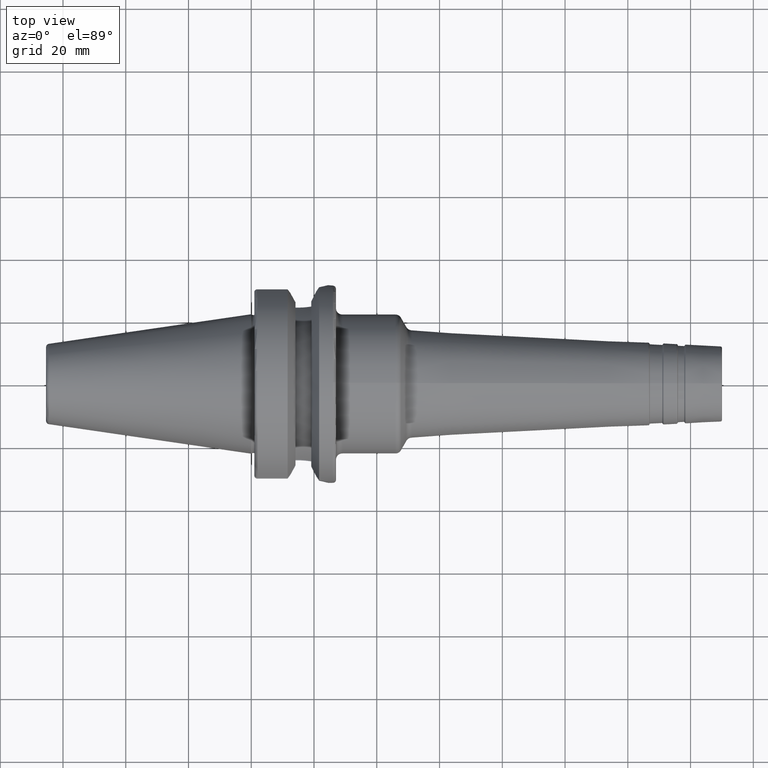
[diagram: clean part render]
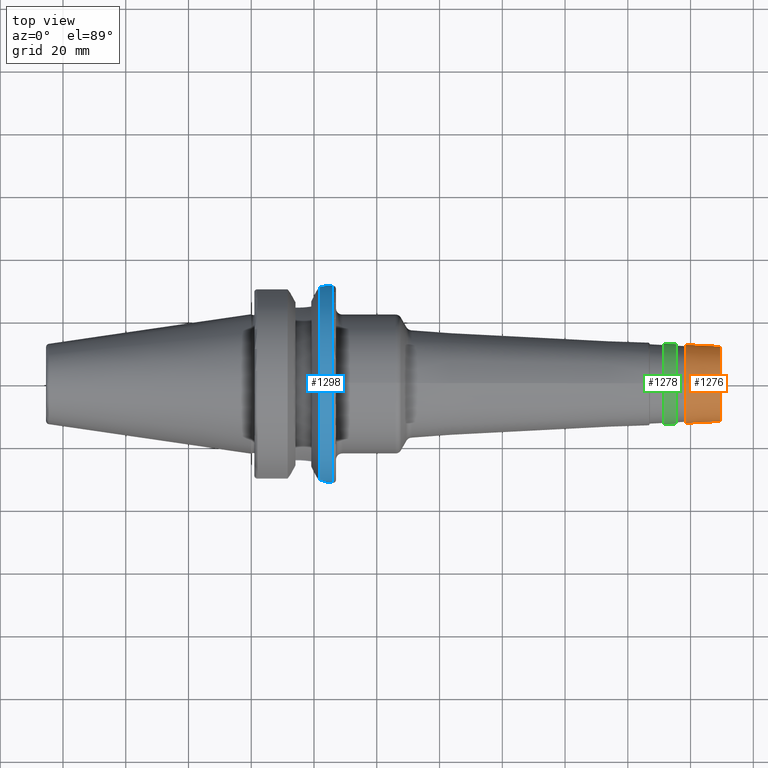
[diagram: same view with three faces highlighted in distinct colors, each labeled with its STEP entity id]
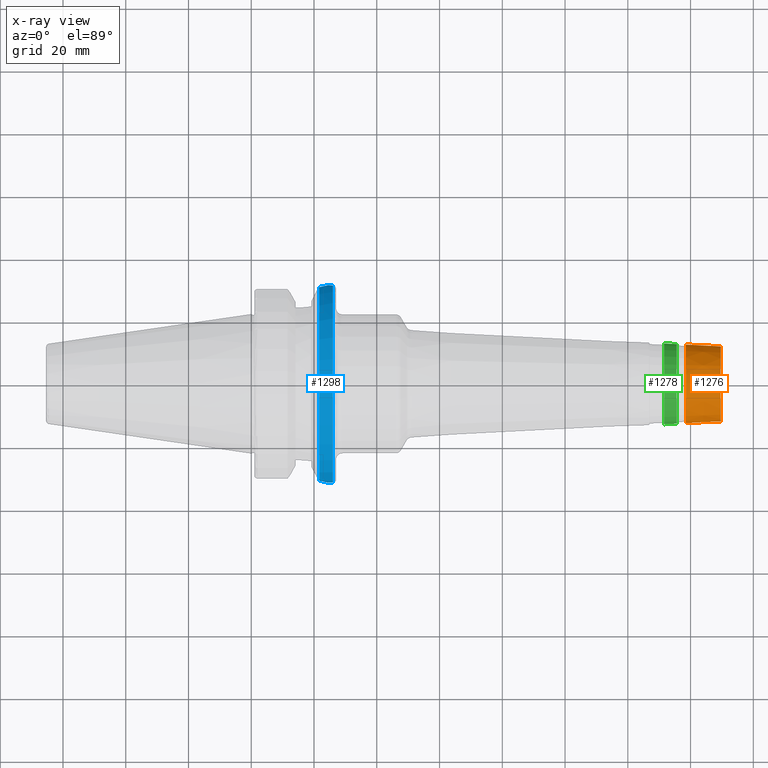
[diagram: x-ray of the same camera — body ghosted, the three highlighted faces saturated]
A machine part, top view with three faces highlighted in distinct colors.
The next image is the same camera in x-ray (body ghosted, the three faces saturated) — at least one of them is partly hidden behind the body in this view.
Their STEP definitions:

[orange] entity #1276 — the highlighted conical surface has half-angle 3 deg.
#103=LINE('',#2024,#174);
#174=VECTOR('',#1617,12.3062069282811);
#245=CONICAL_SURFACE('',#1400,12.3062069282811,0.0523598775598296);
#272=FACE_OUTER_BOUND('',#355,.T.);
#355=EDGE_LOOP('',(#893,#894,#895,#896));
#449=CIRCLE('',#1398,12.6003273851922);
#451=CIRCLE('',#1401,12.0248324840198);
#540=VERTEX_POINT('',#2018);
#541=VERTEX_POINT('',#2022);
#672=EDGE_CURVE('',#540,#540,#449,.T.);
#674=EDGE_CURVE('',#541,#541,#451,.T.);
#675=EDGE_CURVE('',#541,#540,#103,.T.);
#893=ORIENTED_EDGE('',*,*,#674,.F.);
#894=ORIENTED_EDGE('',*,*,#675,.T.);
#895=ORIENTED_EDGE('',*,*,#672,.F.);
#896=ORIENTED_EDGE('',*,*,#675,.F.);
#1276=ADVANCED_FACE('',(#272),#245,.T.);
#1398=AXIS2_PLACEMENT_3D('',#2019,#1609,#1610);
#1400=AXIS2_PLACEMENT_3D('',#2021,#1613,#1614);
#1401=AXIS2_PLACEMENT_3D('',#2023,#1615,#1616);
#1609=DIRECTION('center_axis',(-1.,0.,0.));
#1610=DIRECTION('ref_axis',(0.,0.,1.));
#1613=DIRECTION('center_axis',(-1.,0.,0.));
#1614=DIRECTION('ref_axis',(0.,0.,-1.));
#1615=DIRECTION('center_axis',(1.,0.,0.));
#1616=DIRECTION('ref_axis',(0.,0.,1.));
#1617=DIRECTION('',(-0.998629534754574,-6.40930612932367E-18,0.0523359562429435));
#2018=CARTESIAN_POINT('',(138.545071105762,-1.54309506004843E-15,12.6003273851922));
#2019=CARTESIAN_POINT('Origin',(138.545071105762,-1.54309506004843E-15,
0.));
#2021=CARTESIAN_POINT('Origin',(144.157223746739,0.,0.));
#2022=CARTESIAN_POINT('',(149.526167978121,-1.4726172611838E-15,12.0248324840198));
#2023=CARTESIAN_POINT('Origin',(149.526167978121,-1.4726172611838E-15,0.));
#2024=CARTESIAN_POINT('',(144.157223746739,-1.50707569243645E-15,12.3062069282811));

[blue] entity #1298 — the highlighted cylindrical surface (bore or boss wall) has radius 31.5 mm, axis along (1, 0, 0).
#28=B_SPLINE_CURVE_WITH_KNOTS('',3,(#2155,#2156,#2157,#2158,#2159,#2160),
 .UNSPECIFIED.,.F.,.F.,(4,1,1,4),(-1.84224958312964,-1.48595706368148,-1.30781080395739,
-1.21877016384227),.UNSPECIFIED.);
#29=B_SPLINE_CURVE_WITH_KNOTS('',3,(#2162,#2163,#2164,#2165,#2166,#2167,
#2168),.UNSPECIFIED.,.F.,.F.,(4,1,1,1,4),(-1.21877016384227,-1.12966454423331,
-0.95151828450923,-0.773372024785148,-0.595225765061066),.UNSPECIFIED.);
#32=B_SPLINE_CURVE_WITH_KNOTS('',3,(#2200,#2201,#2202,#2203,#2204,#2205,
#2206,#2207,#2208),.UNSPECIFIED.,.F.,.F.,(4,1,1,1,1,1,4),(-4.27980461993707,
-4.10165836021299,-3.92351210048891,-3.74536584076482,-3.56721958104074,
-3.21092706159258,-3.0327808018685),.UNSPECIFIED.);
#55=CYLINDRICAL_SURFACE('',#1450,31.5);
#113=LINE('',#2196,#184);
#184=VECTOR('',#1727,31.5);
#294=FACE_OUTER_BOUND('',#381,.T.);
#381=EDGE_LOOP('',(#978,#979,#980,#981,#982,#983,#984,#985,#986));
#480=CIRCLE('',#1451,31.5);
#481=CIRCLE('',#1452,31.5000000000001);
#482=CIRCLE('',#1453,31.5000000000001);
#483=CIRCLE('',#1454,31.5);
#564=VERTEX_POINT('',#2140);
#565=VERTEX_POINT('',#2154);
#566=VERTEX_POINT('',#2161);
#568=VERTEX_POINT('',#2193);
#569=VERTEX_POINT('',#2194);
#570=VERTEX_POINT('',#2197);
#571=VERTEX_POINT('',#2199);
#714=EDGE_CURVE('',#564,#565,#28,.T.);
#715=EDGE_CURVE('',#565,#566,#29,.T.);
#718=EDGE_CURVE('',#568,#569,#480,.T.);
#719=EDGE_CURVE('',#568,#565,#113,.T.);
#720=EDGE_CURVE('',#564,#570,#481,.T.);
#721=EDGE_CURVE('',#571,#570,#32,.T.);
#722=EDGE_CURVE('',#571,#566,#482,.T.);
#723=EDGE_CURVE('',#569,#568,#483,.T.);
#978=ORIENTED_EDGE('',*,*,#718,.F.);
#979=ORIENTED_EDGE('',*,*,#719,.T.);
#980=ORIENTED_EDGE('',*,*,#714,.F.);
#981=ORIENTED_EDGE('',*,*,#720,.T.);
#982=ORIENTED_EDGE('',*,*,#721,.F.);
#983=ORIENTED_EDGE('',*,*,#722,.T.);
#984=ORIENTED_EDGE('',*,*,#715,.F.);
#985=ORIENTED_EDGE('',*,*,#719,.F.);
#986=ORIENTED_EDGE('',*,*,#723,.F.);
#1298=ADVANCED_FACE('',(#294),#55,.T.);
#1450=AXIS2_PLACEMENT_3D('',#2192,#1723,#1724);
#1451=AXIS2_PLACEMENT_3D('',#2195,#1725,#1726);
#1452=AXIS2_PLACEMENT_3D('',#2198,#1728,#1729);
#1453=AXIS2_PLACEMENT_3D('',#2209,#1730,#1731);
#1454=AXIS2_PLACEMENT_3D('',#2210,#1732,#1733);
#1723=DIRECTION('center_axis',(1.,0.,0.));
#1724=DIRECTION('ref_axis',(0.,1.,0.));
#1725=DIRECTION('center_axis',(1.,0.,0.));
#1726=DIRECTION('ref_axis',(0.,0.,-1.));
#1727=DIRECTION('',(-1.,0.,0.));
#1728=DIRECTION('center_axis',(1.,0.,0.));
#1729=DIRECTION('ref_axis',(0.,0.,-1.));
#1730=DIRECTION('center_axis',(1.,0.,0.));
#1731=DIRECTION('ref_axis',(0.,0.,-1.));
#1732=DIRECTION('center_axis',(1.,0.,0.));
#1733=DIRECTION('ref_axis',(0.,0.,-1.));
#2140=CARTESIAN_POINT('',(21.6309636926619,-30.7261128229805,-6.93945176433102));
#2154=CARTESIAN_POINT('',(24.6015794084489,-31.5003942450273,1.85479453581945E-7));
#2155=CARTESIAN_POINT('Ctrl Pts',(21.6309636926619,-30.7261128229805,-6.93945176433104));
#2156=CARTESIAN_POINT('Ctrl Pts',(22.6961510501414,-30.9545497110008,-5.92799180573315));
#2157=CARTESIAN_POINT('Ctrl Pts',(23.9476621711017,-31.3013287537231,-4.02926871991382));
#2158=CARTESIAN_POINT('Ctrl Pts',(24.539386584667,-31.4813926281446,-1.43660161177851));
#2159=CARTESIAN_POINT('Ctrl Pts',(24.6024147912166,-31.5005984044012,-0.359089932181337));
#2160=CARTESIAN_POINT('Ctrl Pts',(24.6023963608454,-31.5005981691104,2.81419099468216E-7));
#2161=CARTESIAN_POINT('',(21.6309636926619,-30.7261128229805,6.93945176433102));
#2162=CARTESIAN_POINT('Ctrl Pts',(24.6023963608454,-31.5005981691104,2.81419099468216E-7));
#2163=CARTESIAN_POINT('Ctrl Pts',(24.6023779170243,-31.5005979336479,0.359352549518397));
#2164=CARTESIAN_POINT('Ctrl Pts',(24.5391776982061,-31.4813720543515,1.43716833547184));
#2165=CARTESIAN_POINT('Ctrl Pts',(24.1203087890114,-31.3537760059442,3.28963992211757));
#2166=CARTESIAN_POINT('Ctrl Pts',(23.1058574589656,-31.0687468242346,5.30512118818904));
#2167=CARTESIAN_POINT('Ctrl Pts',(22.1628051487683,-30.8401699475793,6.43443606601588));
#2168=CARTESIAN_POINT('Ctrl Pts',(21.6309636926619,-30.7261128229805,6.93945176433103));
#2192=CARTESIAN_POINT('Origin',(23.8154818463309,0.,0.));
#2193=CARTESIAN_POINT('',(26.,-31.5,-3.85763741731417E-15));
#2194=CARTESIAN_POINT('',(26.,-3.85763741731416E-15,31.5));
#2195=CARTESIAN_POINT('Origin',(26.,0.,0.));
#2196=CARTESIAN_POINT('',(23.8154818463309,-31.5,-3.85763741731417E-15));
#2197=CARTESIAN_POINT('',(21.6309636926619,30.7261128229805,-6.93945176433102));
#2198=CARTESIAN_POINT('Origin',(21.6309636926619,0.,0.));
#2199=CARTESIAN_POINT('',(21.6309636926619,30.7261128229805,6.93945176433102));
#2200=CARTESIAN_POINT('Ctrl Pts',(21.6309636926619,30.7261128229805,6.93945176433103));
#2201=CARTESIAN_POINT('Ctrl Pts',(22.1635573714017,30.8403312669906,6.43372178503206));
#2202=CARTESIAN_POINT('Ctrl Pts',(23.1058006311306,31.068676082151,5.30483105206268));
#2203=CARTESIAN_POINT('Ctrl Pts',(24.1212297261184,31.3542966844527,3.28628050888093));
#2204=CARTESIAN_POINT('Ctrl Pts',(24.6206205096059,31.5059242554325,1.06893295931038));
#2205=CARTESIAN_POINT('Ctrl Pts',(24.6286834675939,31.5098728385937,-1.79133720247254));
#2206=CARTESIAN_POINT('Ctrl Pts',(23.5898637439398,31.1885792218685,-4.75965633791453));
#2207=CARTESIAN_POINT('Ctrl Pts',(22.1628051487683,30.8401699475793,-6.43443606601588));
#2208=CARTESIAN_POINT('Ctrl Pts',(21.6309636926618,30.7261128229805,-6.93945176433104));
#2209=CARTESIAN_POINT('Origin',(21.6309636926619,0.,0.));
#2210=CARTESIAN_POINT('Origin',(26.,0.,0.));

[green] entity #1278 — the highlighted conical surface has half-angle 3 deg.
#104=LINE('',#2031,#175);
#175=VECTOR('',#1626,12.8630337488681);
#246=CONICAL_SURFACE('',#1405,12.8630337488681,0.0523598775598293);
#274=FACE_OUTER_BOUND('',#357,.T.);
#357=EDGE_LOOP('',(#901,#902,#903,#904));
#453=CIRCLE('',#1404,12.7593884188433);
#454=CIRCLE('',#1406,12.9666790788928);
#542=VERTEX_POINT('',#2026);
#543=VERTEX_POINT('',#2030);
#677=EDGE_CURVE('',#542,#542,#453,.T.);
#678=EDGE_CURVE('',#542,#543,#104,.T.);
#679=EDGE_CURVE('',#543,#543,#454,.T.);
#901=ORIENTED_EDGE('',*,*,#677,.F.);
#902=ORIENTED_EDGE('',*,*,#678,.T.);
#903=ORIENTED_EDGE('',*,*,#679,.F.);
#904=ORIENTED_EDGE('',*,*,#678,.F.);
#1278=ADVANCED_FACE('',(#274),#246,.T.);
#1404=AXIS2_PLACEMENT_3D('',#2028,#1622,#1623);
#1405=AXIS2_PLACEMENT_3D('',#2029,#1624,#1625);
#1406=AXIS2_PLACEMENT_3D('',#2032,#1627,#1628);
#1622=DIRECTION('center_axis',(1.,0.,0.));
#1623=DIRECTION('ref_axis',(0.,0.,1.));
#1624=DIRECTION('center_axis',(-1.,0.,0.));
#1625=DIRECTION('ref_axis',(0.,0.,-1.));
#1626=DIRECTION('',(-0.998629534754574,-6.40930612932364E-18,0.0523359562429432));
#1627=DIRECTION('center_axis',(-1.,0.,0.));
#1628=DIRECTION('ref_axis',(0.,1.90117324090214E-32,1.));
#2026=CARTESIAN_POINT('',(135.510005780972,-1.56257441862143E-15,12.7593884188433));
#2028=CARTESIAN_POINT('Origin',(135.510005780972,-1.56257441862143E-15,
0.));
#2029=CARTESIAN_POINT('Origin',(133.532335071726,0.,0.));
#2030=CARTESIAN_POINT('',(131.55466436248,-1.5879602029537E-15,12.9666790788928));
#2031=CARTESIAN_POINT('',(133.532335071726,-1.57526731078757E-15,12.8630337488681));
#2032=CARTESIAN_POINT('Origin',(131.55466436248,-1.5879602029537E-15,0.));